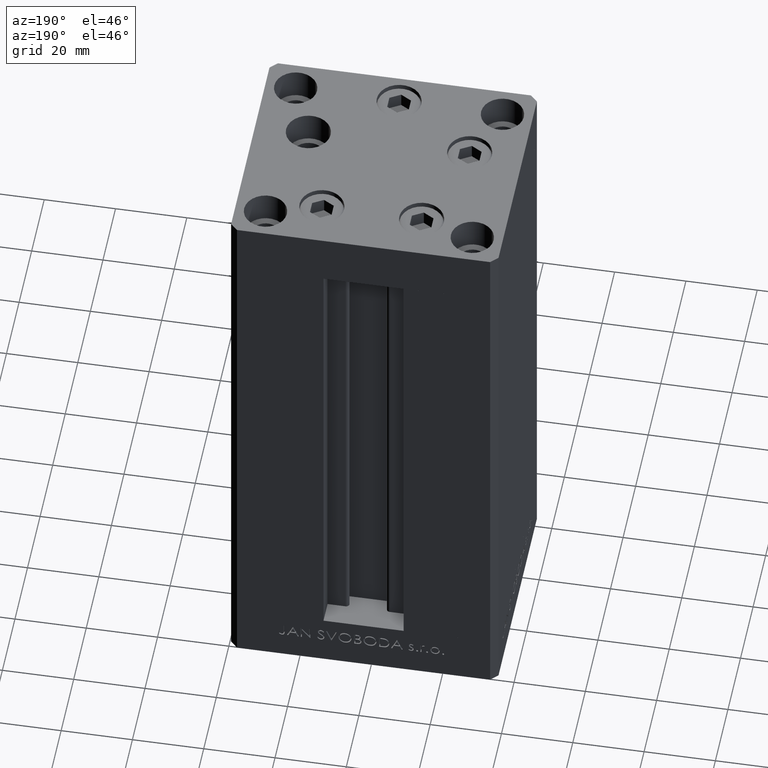
[diagram: clean part render]
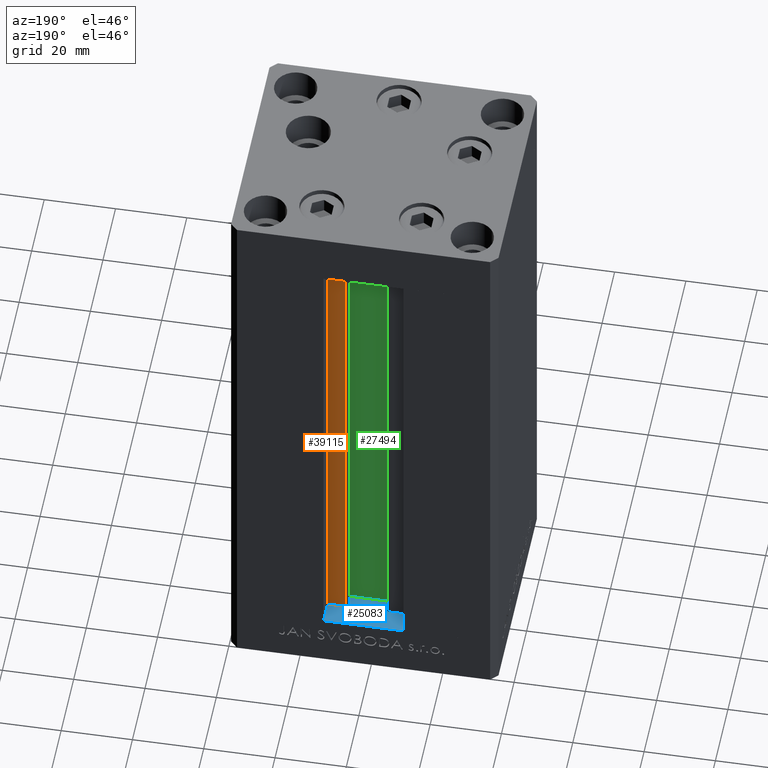
[diagram: same view with three faces highlighted in distinct colors, each labeled with its STEP entity id]
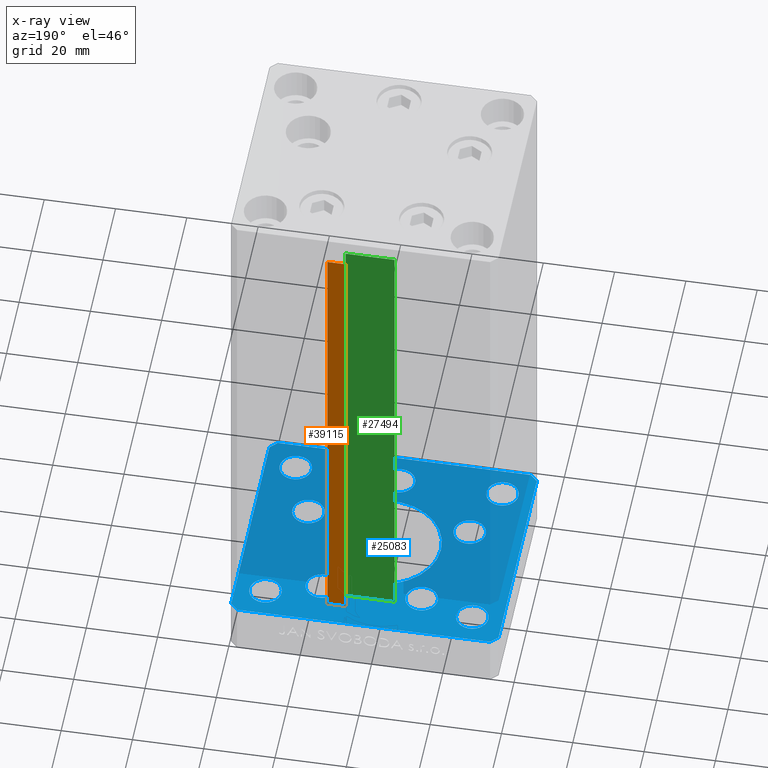
[diagram: x-ray of the same camera — body ghosted, the three highlighted faces saturated]
A machine part, auxiliary view with three faces highlighted in distinct colors.
The next image is the same camera in x-ray (body ghosted, the three faces saturated) — at least one of them is partly hidden behind the body in this view.
Their STEP definitions:

[orange] entity #39115 — the highlighted planar face has unit normal (0, -1, 0).
#2409 = ORIENTED_EDGE ( 'NONE', *, *, #45982, .F. ) ;
#5831 = LINE ( 'NONE', #32991, #24863 ) ;
#5858 = AXIS2_PLACEMENT_3D ( 'NONE', #28568, #44152, #6806 ) ;
#6089 = ORIENTED_EDGE ( 'NONE', *, *, #23525, .F. ) ;
#6806 = DIRECTION ( 'NONE',  ( 0.000000000000000000, -0.000000000000000000, -1.000000000000000000 ) ) ;
#8836 = VERTEX_POINT ( 'NONE', #30884 ) ;
#10307 = ORIENTED_EDGE ( 'NONE', *, *, #19269, .F. ) ;
#11815 = VERTEX_POINT ( 'NONE', #42192 ) ;
#12416 = VECTOR ( 'NONE', #24670, 1000.000000000000000 ) ;
#19269 = EDGE_CURVE ( 'NONE', #45633, #11815, #21446, .T. ) ;
#19295 = EDGE_LOOP ( 'NONE', ( #10307, #2409, #36750, #6089 ) ) ;
#21446 = LINE ( 'NONE', #43731, #12416 ) ;
#21869 = PLANE ( 'NONE',  #5858 ) ;
#22796 = DIRECTION ( 'NONE',  ( -0.000000000000000000, -0.000000000000000000, 1.000000000000000000 ) ) ;
#22922 = VECTOR ( 'NONE', #22796, 1000.000000000000000 ) ;
#23525 = EDGE_CURVE ( 'NONE', #11815, #40148, #39003, .T. ) ;
#24670 = DIRECTION ( 'NONE',  ( -0.000000000000000000, -0.000000000000000000, 1.000000000000000000 ) ) ;
#24863 = VECTOR ( 'NONE', #25569, 1000.000000000000000 ) ;
#25569 = DIRECTION ( 'NONE',  ( 1.000000000000000000, 0.000000000000000000, 0.000000000000000000 ) ) ;
#26986 = CARTESIAN_POINT ( 'NONE',  ( 6.183333333334001480, 25.99999999999999289, 0.000000000000000000 ) ) ;
#28568 = CARTESIAN_POINT ( 'NONE',  ( 6.183333333334001480, 25.99999999999999289, 0.000000000000000000 ) ) ;
#28607 = CARTESIAN_POINT ( 'NONE',  ( 0.000000000000000000, 25.99999999999999289, 136.0000000000000000 ) ) ;
#29295 = FACE_OUTER_BOUND ( 'NONE', #19295, .T. ) ;
#29823 = CARTESIAN_POINT ( 'NONE',  ( 11.25000000000000178, 25.99999999999999289, 0.000000000000000000 ) ) ;
#30381 = EDGE_CURVE ( 'NONE', #8836, #40148, #30699, .T. ) ;
#30699 = LINE ( 'NONE', #26986, #22922 ) ;
#30884 = CARTESIAN_POINT ( 'NONE',  ( 6.183333333334001480, 25.99999999999999289, 0.000000000000000000 ) ) ;
#31501 = VECTOR ( 'NONE', #43713, 1000.000000000000000 ) ;
#32991 = CARTESIAN_POINT ( 'NONE',  ( 6.183333333334001480, 25.99999999999999289, 0.000000000000000000 ) ) ;
#36750 = ORIENTED_EDGE ( 'NONE', *, *, #30381, .T. ) ;
#39003 = LINE ( 'NONE', #28607, #31501 ) ;
#39115 = ADVANCED_FACE ( 'NONE', ( #29295 ), #21869, .F. ) ;
#40148 = VERTEX_POINT ( 'NONE', #45435 ) ;
#42192 = CARTESIAN_POINT ( 'NONE',  ( 11.25000000000000178, 25.99999999999999289, 136.0000000000000000 ) ) ;
#43713 = DIRECTION ( 'NONE',  ( -1.000000000000000000, 0.000000000000000000, 0.000000000000000000 ) ) ;
#43731 = CARTESIAN_POINT ( 'NONE',  ( 11.25000000000000178, 25.99999999999999289, 0.000000000000000000 ) ) ;
#44152 = DIRECTION ( 'NONE',  ( 0.000000000000000000, -1.000000000000000000, 0.000000000000000000 ) ) ;
#45435 = CARTESIAN_POINT ( 'NONE',  ( 6.183333333334001480, 25.99999999999999289, 136.0000000000000000 ) ) ;
#45633 = VERTEX_POINT ( 'NONE', #29823 ) ;
#45982 = EDGE_CURVE ( 'NONE', #8836, #45633, #5831, .T. ) ;

[blue] entity #25083 — the highlighted planar face has unit normal (0, 0, -1).
#21 = VECTOR ( 'NONE', #13799, 1000.000000000000000 ) ;
#86 = CARTESIAN_POINT ( 'NONE',  ( 9.491068579633235913, 19.50000000000000000, -15.00000000000000000 ) ) ;
#386 = EDGE_CURVE ( 'NONE', #30295, #1252, #33625, .T. ) ;
#464 = DIRECTION ( 'NONE',  ( -0.000000000000000000, 0.000000000000000000, 1.000000000000000000 ) ) ;
#734 = AXIS2_PLACEMENT_3D ( 'NONE', #8270, #16170, #42636 ) ;
#752 = CARTESIAN_POINT ( 'NONE',  ( 29.00000000000000000, 24.00000000000000355, -15.00000000000000000 ) ) ;
#839 = AXIS2_PLACEMENT_3D ( 'NONE', #35401, #47052, #39116 ) ;
#906 = CIRCLE ( 'NONE', #25392, 4.499999999999997335 ) ;
#1068 = CARTESIAN_POINT ( 'NONE',  ( -29.00000000000000000, 24.00000000000000711, -15.00000000000000000 ) ) ;
#1184 = CARTESIAN_POINT ( 'NONE',  ( -22.62741699796953299, -8.000000000000000000, -15.00000000000000000 ) ) ;
#1186 = DIRECTION ( 'NONE',  ( 0.7071067811865463515, 0.7071067811865487940, 0.000000000000000000 ) ) ;
#1252 = VERTEX_POINT ( 'NONE', #2516 ) ;
#1266 = EDGE_CURVE ( 'NONE', #14731, #48813, #8439, .T. ) ;
#1424 = DIRECTION ( 'NONE',  ( -0.000000000000000000, 0.000000000000000000, 1.000000000000000000 ) ) ;
#2114 = EDGE_CURVE ( 'NONE', #10422, #32493, #3696, .T. ) ;
#2184 = LINE ( 'NONE', #44217, #21 ) ;
#2310 = EDGE_CURVE ( 'NONE', #33352, #43285, #42805, .T. ) ;
#2516 = CARTESIAN_POINT ( 'NONE',  ( 27.12741699796953654, -8.000000000000000000, -15.00000000000000000 ) ) ;
#3340 = ORIENTED_EDGE ( 'NONE', *, *, #2114, .T. ) ;
#3378 = DIRECTION ( 'NONE',  ( 1.000000000000000000, 0.000000000000000000, 0.000000000000000000 ) ) ;
#3696 = CIRCLE ( 'NONE', #10028, 4.499999999999999112 ) ;
#3820 = ORIENTED_EDGE ( 'NONE', *, *, #42101, .F. ) ;
#4094 = ORIENTED_EDGE ( 'NONE', *, *, #26476, .F. ) ;
#4204 = DIRECTION ( 'NONE',  ( -0.000000000000000000, 0.000000000000000000, 1.000000000000000000 ) ) ;
#4306 = ORIENTED_EDGE ( 'NONE', *, *, #41840, .T. ) ;
#4413 = EDGE_CURVE ( 'NONE', #13727, #22456, #26198, .T. ) ;
#4447 = CARTESIAN_POINT ( 'NONE',  ( 13.99106857963324124, 19.50000000000000000, -15.00000000000000000 ) ) ;
#4701 = EDGE_CURVE ( 'NONE', #25448, #17541, #43295, .T. ) ;
#5003 = CARTESIAN_POINT ( 'NONE',  ( -37.50000000000001421, 30.50000000000000000, -15.00000000000000000 ) ) ;
#5023 = DIRECTION ( 'NONE',  ( -0.000000000000000000, 0.000000000000000000, 1.000000000000000000 ) ) ;
#5073 = VERTEX_POINT ( 'NONE', #42645 ) ;
#5875 = VERTEX_POINT ( 'NONE', #10522 ) ;
#5881 = CARTESIAN_POINT ( 'NONE',  ( 24.50000000000000000, 24.00000000000000355, -15.00000000000000000 ) ) ;
#5882 = CARTESIAN_POINT ( 'NONE',  ( 22.62741699796953299, -8.000000000000000000, -15.00000000000000000 ) ) ;
#5999 = DIRECTION ( 'NONE',  ( -0.000000000000000000, 0.000000000000000000, 1.000000000000000000 ) ) ;
#6485 = CARTESIAN_POINT ( 'NONE',  ( 37.50000000000000711, -30.49999999999992895, -15.00000000000000000 ) ) ;
#6876 = CARTESIAN_POINT ( 'NONE',  ( 0.000000000000000000, -24.00000000000001066, -15.00000000000000000 ) ) ;
#7426 = CARTESIAN_POINT ( 'NONE',  ( 35.50000000000000000, 32.49999999999999289, -15.00000000000000000 ) ) ;
#7626 = EDGE_LOOP ( 'NONE', ( #42737, #7784 ) ) ;
#7721 = DIRECTION ( 'NONE',  ( 0.000000000000000000, -0.000000000000000000, -1.000000000000000000 ) ) ;
#7784 = ORIENTED_EDGE ( 'NONE', *, *, #28874, .F. ) ;
#7997 = CARTESIAN_POINT ( 'NONE',  ( 33.50000000000000000, 24.00000000000000355, -15.00000000000000000 ) ) ;
#8045 = VERTEX_POINT ( 'NONE', #40010 ) ;
#8046 = ORIENTED_EDGE ( 'NONE', *, *, #16104, .F. ) ;
#8107 = VECTOR ( 'NONE', #38368, 1000.000000000000000 ) ;
#8229 = ORIENTED_EDGE ( 'NONE', *, *, #20594, .F. ) ;
#8270 = CARTESIAN_POINT ( 'NONE',  ( 0.000000000000000000, 0.000000000000000000, -15.00000000000000000 ) ) ;
#8351 = EDGE_LOOP ( 'NONE', ( #8422, #41497 ) ) ;
#8422 = ORIENTED_EDGE ( 'NONE', *, *, #35105, .T. ) ;
#8439 = CIRCLE ( 'NONE', #21076, 4.500000000000005329 ) ;
#8538 = AXIS2_PLACEMENT_3D ( 'NONE', #6876, #29367, #21940 ) ;
#8663 = VERTEX_POINT ( 'NONE', #33128 ) ;
#8965 = VERTEX_POINT ( 'NONE', #39346 ) ;
#9423 = DIRECTION ( 'NONE',  ( 1.000000000000000000, 0.000000000000000000, 0.000000000000000000 ) ) ;
#9626 = FACE_BOUND ( 'NONE', #31076, .T. ) ;
#9676 = DIRECTION ( 'NONE',  ( 0.7071067811865512365, -0.7071067811865439090, 0.000000000000000000 ) ) ;
#9911 = EDGE_CURVE ( 'NONE', #37940, #18798, #40304, .T. ) ;
#10028 = AXIS2_PLACEMENT_3D ( 'NONE', #39865, #5999, #44315 ) ;
#10153 = CARTESIAN_POINT ( 'NONE',  ( -37.50000000000000000, -30.50000000000004263, -15.00000000000000000 ) ) ;
#10185 = ORIENTED_EDGE ( 'NONE', *, *, #9911, .T. ) ;
#10254 = VECTOR ( 'NONE', #18770, 1000.000000000000000 ) ;
#10422 = VERTEX_POINT ( 'NONE', #24394 ) ;
#10522 = CARTESIAN_POINT ( 'NONE',  ( -24.50000000000000000, 24.00000000000000711, -15.00000000000000000 ) ) ;
#10580 = CARTESIAN_POINT ( 'NONE',  ( 35.50000000000000000, 32.49999999999999289, -15.00000000000000000 ) ) ;
#11521 = CARTESIAN_POINT ( 'NONE',  ( -18.12741699796953654, -8.000000000000000000, -15.00000000000000000 ) ) ;
#11664 = CARTESIAN_POINT ( 'NONE',  ( -13.99106857963324124, 19.50000000000000000, -15.00000000000000000 ) ) ;
#11722 = EDGE_CURVE ( 'NONE', #17541, #25448, #48273, .T. ) ;
#11843 = LINE ( 'NONE', #7426, #10254 ) ;
#12318 = AXIS2_PLACEMENT_3D ( 'NONE', #36404, #25982, #28739 ) ;
#12600 = FACE_BOUND ( 'NONE', #28593, .T. ) ;
#12707 = AXIS2_PLACEMENT_3D ( 'NONE', #21755, #33117, #9423 ) ;
#13040 = LINE ( 'NONE', #16751, #30873 ) ;
#13255 = ORIENTED_EDGE ( 'NONE', *, *, #1266, .T. ) ;
#13329 = FACE_BOUND ( 'NONE', #7626, .T. ) ;
#13386 = CARTESIAN_POINT ( 'NONE',  ( 18.49106857963324657, 19.50000000000000000, -15.00000000000000000 ) ) ;
#13713 = EDGE_CURVE ( 'NONE', #48813, #14731, #26833, .T. ) ;
#13727 = VERTEX_POINT ( 'NONE', #40192 ) ;
#13799 = DIRECTION ( 'NONE',  ( 0.000000000000000000, 1.000000000000000000, 0.000000000000000000 ) ) ;
#14643 = DIRECTION ( 'NONE',  ( 1.000000000000000000, 0.000000000000000000, 0.000000000000000000 ) ) ;
#14648 = EDGE_CURVE ( 'NONE', #28846, #28166, #33970, .T. ) ;
#14731 = VERTEX_POINT ( 'NONE', #13386 ) ;
#14811 = AXIS2_PLACEMENT_3D ( 'NONE', #32211, #28015, #36657 ) ;
#15335 = DIRECTION ( 'NONE',  ( 0.000000000000000000, -0.000000000000000000, -1.000000000000000000 ) ) ;
#15671 = FACE_BOUND ( 'NONE', #29636, .T. ) ;
#15699 = CARTESIAN_POINT ( 'NONE',  ( 4.500000000000001776, -24.00000000000001066, -15.00000000000000000 ) ) ;
#16104 = EDGE_CURVE ( 'NONE', #43285, #38134, #13040, .T. ) ;
#16170 = DIRECTION ( 'NONE',  ( -0.000000000000000000, 0.000000000000000000, 1.000000000000000000 ) ) ;
#16410 = AXIS2_PLACEMENT_3D ( 'NONE', #38399, #31235, #38647 ) ;
#16749 = DIRECTION ( 'NONE',  ( 1.000000000000000000, 0.000000000000000000, 0.000000000000000000 ) ) ;
#16751 = CARTESIAN_POINT ( 'NONE',  ( 35.50000000000001421, -32.49999999999992184, -15.00000000000000000 ) ) ;
#16793 = CIRCLE ( 'NONE', #22288, 4.500000000000000888 ) ;
#17396 = EDGE_LOOP ( 'NONE', ( #42478, #43282, #3820, #29059, #41933, #24774, #8046, #32754 ) ) ;
#17478 = DIRECTION ( 'NONE',  ( -0.000000000000000000, 0.000000000000000000, 1.000000000000000000 ) ) ;
#17541 = VERTEX_POINT ( 'NONE', #15699 ) ;
#17579 = CARTESIAN_POINT ( 'NONE',  ( 29.00000000000000000, 24.00000000000000355, -15.00000000000000000 ) ) ;
#17636 = CARTESIAN_POINT ( 'NONE',  ( -35.50000000000001421, -32.50000000000000711, -15.00000000000000000 ) ) ;
#17911 = CARTESIAN_POINT ( 'NONE',  ( -35.50000000000000711, 32.49999999999997868, -15.00000000000000000 ) ) ;
#18311 = CARTESIAN_POINT ( 'NONE',  ( -29.00000000000000000, -23.99999999999999645, -15.00000000000000000 ) ) ;
#18596 = EDGE_LOOP ( 'NONE', ( #32666, #40925 ) ) ;
#18770 = DIRECTION ( 'NONE',  ( -1.000000000000000000, -1.954618001100627573E-16, 0.000000000000000000 ) ) ;
#18774 = CARTESIAN_POINT ( 'NONE',  ( 37.50000000000000711, 30.50000000000001421, -15.00000000000000000 ) ) ;
#18798 = VERTEX_POINT ( 'NONE', #22589 ) ;
#19107 = CARTESIAN_POINT ( 'NONE',  ( 24.50000000000000711, -23.99999999999999645, -15.00000000000000000 ) ) ;
#19275 = DIRECTION ( 'NONE',  ( 1.000000000000000000, 0.000000000000000000, 0.000000000000000000 ) ) ;
#19483 = CARTESIAN_POINT ( 'NONE',  ( 29.00000000000000355, -23.99999999999999645, -15.00000000000000000 ) ) ;
#19524 = DIRECTION ( 'NONE',  ( 1.000000000000000000, 0.000000000000000000, 0.000000000000000000 ) ) ;
#19829 = EDGE_CURVE ( 'NONE', #5875, #8045, #44061, .T. ) ;
#19979 = EDGE_CURVE ( 'NONE', #35410, #37475, #40856, .T. ) ;
#20594 = EDGE_CURVE ( 'NONE', #22592, #33433, #32182, .T. ) ;
#21076 = AXIS2_PLACEMENT_3D ( 'NONE', #4447, #4204, #19524 ) ;
#21231 = FACE_BOUND ( 'NONE', #29083, .T. ) ;
#21690 = CIRCLE ( 'NONE', #37497, 4.499999999999997335 ) ;
#21755 = CARTESIAN_POINT ( 'NONE',  ( 0.000000000000000000, 0.000000000000000000, -15.00000000000000000 ) ) ;
#21940 = DIRECTION ( 'NONE',  ( 1.000000000000000000, 0.000000000000000000, 0.000000000000000000 ) ) ;
#22256 = CIRCLE ( 'NONE', #43600, 4.500000000000000888 ) ;
#22288 = AXIS2_PLACEMENT_3D ( 'NONE', #18311, #48509, #26209 ) ;
#22412 = CARTESIAN_POINT ( 'NONE',  ( 0.000000000000000000, -24.00000000000001066, -15.00000000000000000 ) ) ;
#22456 = VERTEX_POINT ( 'NONE', #10580 ) ;
#22589 = CARTESIAN_POINT ( 'NONE',  ( 33.50000000000000000, -23.99999999999999645, -15.00000000000000000 ) ) ;
#22592 = VERTEX_POINT ( 'NONE', #34785 ) ;
#22621 = ORIENTED_EDGE ( 'NONE', *, *, #35865, .T. ) ;
#23040 = CARTESIAN_POINT ( 'NONE',  ( -4.500000000000001776, -24.00000000000001066, -15.00000000000000000 ) ) ;
#23460 = VECTOR ( 'NONE', #24965, 1000.000000000000000 ) ;
#23829 = FACE_BOUND ( 'NONE', #18596, .T. ) ;
#23976 = DIRECTION ( 'NONE',  ( 1.000000000000000000, 0.000000000000000000, 0.000000000000000000 ) ) ;
#24394 = CARTESIAN_POINT ( 'NONE',  ( -18.49106857963323947, 19.50000000000000000, -15.00000000000000000 ) ) ;
#24591 = EDGE_LOOP ( 'NONE', ( #43050, #4094 ) ) ;
#24774 = ORIENTED_EDGE ( 'NONE', *, *, #31173, .F. ) ;
#24965 = DIRECTION ( 'NONE',  ( 1.000000000000000000, 1.172770800660376149E-15, 0.000000000000000000 ) ) ;
#25083 = ADVANCED_FACE ( 'NONE', ( #13329, #28401, #9626, #42781, #21231, #36318, #46487, #12600, #27667, #23829, #15671 ), #30756, .F. ) ;
#25392 = AXIS2_PLACEMENT_3D ( 'NONE', #1184, #1424, #16749 ) ;
#25448 = VERTEX_POINT ( 'NONE', #23040 ) ;
#25982 = DIRECTION ( 'NONE',  ( -0.000000000000000000, 0.000000000000000000, 1.000000000000000000 ) ) ;
#26021 = CIRCLE ( 'NONE', #29211, 4.500000000000000888 ) ;
#26190 = CARTESIAN_POINT ( 'NONE',  ( -16.00000000000000000, 1.959434878635765131E-15, -15.00000000000000000 ) ) ;
#26198 = LINE ( 'NONE', #18774, #44063 ) ;
#26209 = DIRECTION ( 'NONE',  ( 1.000000000000000000, 0.000000000000000000, 0.000000000000000000 ) ) ;
#26476 = EDGE_CURVE ( 'NONE', #37475, #35410, #26021, .T. ) ;
#26528 = DIRECTION ( 'NONE',  ( -0.7071067811865524577, -0.7071067811865426878, 0.000000000000000000 ) ) ;
#26605 = DIRECTION ( 'NONE',  ( -0.000000000000000000, 0.000000000000000000, 1.000000000000000000 ) ) ;
#26682 = CARTESIAN_POINT ( 'NONE',  ( -37.50000000000000000, -30.50000000000004263, -15.00000000000000000 ) ) ;
#26743 = DIRECTION ( 'NONE',  ( -0.000000000000000000, 0.000000000000000000, 1.000000000000000000 ) ) ;
#26833 = CIRCLE ( 'NONE', #37116, 4.500000000000005329 ) ;
#26909 = AXIS2_PLACEMENT_3D ( 'NONE', #22412, #37493, #3378 ) ;
#27341 = CARTESIAN_POINT ( 'NONE',  ( 13.99106857963324124, 19.50000000000000000, -15.00000000000000000 ) ) ;
#27482 = LINE ( 'NONE', #5003, #8107 ) ;
#27667 = FACE_OUTER_BOUND ( 'NONE', #17396, .T. ) ;
#28015 = DIRECTION ( 'NONE',  ( 0.000000000000000000, -0.000000000000000000, -1.000000000000000000 ) ) ;
#28166 = VERTEX_POINT ( 'NONE', #11521 ) ;
#28401 = FACE_BOUND ( 'NONE', #46018, .T. ) ;
#28593 = EDGE_LOOP ( 'NONE', ( #31080, #8229 ) ) ;
#28739 = DIRECTION ( 'NONE',  ( 1.000000000000000000, 0.000000000000000000, 0.000000000000000000 ) ) ;
#28846 = VERTEX_POINT ( 'NONE', #43306 ) ;
#28874 = EDGE_CURVE ( 'NONE', #39786, #8663, #34004, .T. ) ;
#29059 = ORIENTED_EDGE ( 'NONE', *, *, #29926, .F. ) ;
#29083 = EDGE_LOOP ( 'NONE', ( #13255, #40507 ) ) ;
#29211 = AXIS2_PLACEMENT_3D ( 'NONE', #17579, #35462, #32661 ) ;
#29367 = DIRECTION ( 'NONE',  ( -0.000000000000000000, 0.000000000000000000, 1.000000000000000000 ) ) ;
#29636 = EDGE_LOOP ( 'NONE', ( #4306, #10185 ) ) ;
#29804 = AXIS2_PLACEMENT_3D ( 'NONE', #752, #15335, #23976 ) ;
#29811 = EDGE_CURVE ( 'NONE', #32967, #33352, #44286, .T. ) ;
#29926 = EDGE_CURVE ( 'NONE', #22456, #5073, #11843, .T. ) ;
#30161 = CARTESIAN_POINT ( 'NONE',  ( 29.00000000000000355, -23.99999999999999645, -15.00000000000000000 ) ) ;
#30295 = VERTEX_POINT ( 'NONE', #48318 ) ;
#30327 = AXIS2_PLACEMENT_3D ( 'NONE', #45314, #7721, #14643 ) ;
#30403 = VECTOR ( 'NONE', #26528, 1000.000000000000000 ) ;
#30408 = DIRECTION ( 'NONE',  ( -0.000000000000000000, 0.000000000000000000, 1.000000000000000000 ) ) ;
#30428 = ORIENTED_EDGE ( 'NONE', *, *, #4701, .T. ) ;
#30756 = PLANE ( 'NONE',  #734 ) ;
#30873 = VECTOR ( 'NONE', #1186, 1000.000000000000000 ) ;
#31076 = EDGE_LOOP ( 'NONE', ( #48945, #30428 ) ) ;
#31080 = ORIENTED_EDGE ( 'NONE', *, *, #36137, .F. ) ;
#31173 = EDGE_CURVE ( 'NONE', #38134, #13727, #2184, .T. ) ;
#31235 = DIRECTION ( 'NONE',  ( -0.000000000000000000, 0.000000000000000000, 1.000000000000000000 ) ) ;
#31781 = CIRCLE ( 'NONE', #44437, 4.499999999999999112 ) ;
#31833 = DIRECTION ( 'NONE',  ( 1.000000000000000000, 0.000000000000000000, 0.000000000000000000 ) ) ;
#31959 = DIRECTION ( 'NONE',  ( 1.000000000000000000, 0.000000000000000000, 0.000000000000000000 ) ) ;
#32182 = CIRCLE ( 'NONE', #14811, 4.500000000000000888 ) ;
#32211 = CARTESIAN_POINT ( 'NONE',  ( -29.00000000000000000, -23.99999999999999645, -15.00000000000000000 ) ) ;
#32384 = CARTESIAN_POINT ( 'NONE',  ( -35.50000000000001421, -32.50000000000000711, -15.00000000000000000 ) ) ;
#32493 = VERTEX_POINT ( 'NONE', #46356 ) ;
#32661 = DIRECTION ( 'NONE',  ( 1.000000000000000000, 0.000000000000000000, 0.000000000000000000 ) ) ;
#32666 = ORIENTED_EDGE ( 'NONE', *, *, #19829, .T. ) ;
#32754 = ORIENTED_EDGE ( 'NONE', *, *, #2310, .F. ) ;
#32967 = VERTEX_POINT ( 'NONE', #26682 ) ;
#33117 = DIRECTION ( 'NONE',  ( 0.000000000000000000, -0.000000000000000000, -1.000000000000000000 ) ) ;
#33128 = CARTESIAN_POINT ( 'NONE',  ( 16.00000000000000000, 0.000000000000000000, -15.00000000000000000 ) ) ;
#33352 = VERTEX_POINT ( 'NONE', #17636 ) ;
#33433 = VERTEX_POINT ( 'NONE', #33925 ) ;
#33625 = CIRCLE ( 'NONE', #12318, 4.500000000000000888 ) ;
#33925 = CARTESIAN_POINT ( 'NONE',  ( -24.50000000000000000, -23.99999999999999645, -15.00000000000000000 ) ) ;
#33970 = CIRCLE ( 'NONE', #839, 4.499999999999997335 ) ;
#34004 = CIRCLE ( 'NONE', #12707, 16.00000000000000000 ) ;
#34224 = EDGE_CURVE ( 'NONE', #28166, #28846, #906, .T. ) ;
#34314 = EDGE_LOOP ( 'NONE', ( #22621, #3340 ) ) ;
#34565 = DIRECTION ( 'NONE',  ( 1.000000000000000000, 0.000000000000000000, 0.000000000000000000 ) ) ;
#34785 = CARTESIAN_POINT ( 'NONE',  ( -33.50000000000000000, -23.99999999999999645, -15.00000000000000000 ) ) ;
#35105 = EDGE_CURVE ( 'NONE', #1252, #30295, #22256, .T. ) ;
#35401 = CARTESIAN_POINT ( 'NONE',  ( -22.62741699796953299, -8.000000000000000000, -15.00000000000000000 ) ) ;
#35410 = VERTEX_POINT ( 'NONE', #7997 ) ;
#35462 = DIRECTION ( 'NONE',  ( 0.000000000000000000, -0.000000000000000000, -1.000000000000000000 ) ) ;
#35515 = EDGE_CURVE ( 'NONE', #8045, #5875, #39631, .T. ) ;
#35865 = EDGE_CURVE ( 'NONE', #32493, #10422, #31781, .T. ) ;
#35888 = EDGE_CURVE ( 'NONE', #8965, #32967, #27482, .T. ) ;
#36137 = EDGE_CURVE ( 'NONE', #33433, #22592, #16793, .T. ) ;
#36318 = FACE_BOUND ( 'NONE', #34314, .T. ) ;
#36404 = CARTESIAN_POINT ( 'NONE',  ( 22.62741699796953299, -8.000000000000000000, -15.00000000000000000 ) ) ;
#36657 = DIRECTION ( 'NONE',  ( 1.000000000000000000, 0.000000000000000000, 0.000000000000000000 ) ) ;
#36709 = LINE ( 'NONE', #17911, #30403 ) ;
#37116 = AXIS2_PLACEMENT_3D ( 'NONE', #27341, #26605, #41708 ) ;
#37475 = VERTEX_POINT ( 'NONE', #5881 ) ;
#37493 = DIRECTION ( 'NONE',  ( -0.000000000000000000, 0.000000000000000000, 1.000000000000000000 ) ) ;
#37497 = AXIS2_PLACEMENT_3D ( 'NONE', #19483, #464, #34565 ) ;
#37940 = VERTEX_POINT ( 'NONE', #19107 ) ;
#38134 = VERTEX_POINT ( 'NONE', #6485 ) ;
#38368 = DIRECTION ( 'NONE',  ( 2.275047181608926165E-16, -1.000000000000000000, 0.000000000000000000 ) ) ;
#38399 = CARTESIAN_POINT ( 'NONE',  ( -29.00000000000000000, 24.00000000000000711, -15.00000000000000000 ) ) ;
#38647 = DIRECTION ( 'NONE',  ( 1.000000000000000000, 0.000000000000000000, 0.000000000000000000 ) ) ;
#39116 = DIRECTION ( 'NONE',  ( 1.000000000000000000, 0.000000000000000000, 0.000000000000000000 ) ) ;
#39346 = CARTESIAN_POINT ( 'NONE',  ( -37.50000000000001421, 30.50000000000000000, -15.00000000000000000 ) ) ;
#39631 = CIRCLE ( 'NONE', #45964, 4.500000000000000888 ) ;
#39786 = VERTEX_POINT ( 'NONE', #26190 ) ;
#39865 = CARTESIAN_POINT ( 'NONE',  ( -13.99106857963324124, 19.50000000000000000, -15.00000000000000000 ) ) ;
#40010 = CARTESIAN_POINT ( 'NONE',  ( -33.50000000000000000, 24.00000000000000711, -15.00000000000000000 ) ) ;
#40192 = CARTESIAN_POINT ( 'NONE',  ( 37.50000000000000711, 30.50000000000001421, -15.00000000000000000 ) ) ;
#40304 = CIRCLE ( 'NONE', #48205, 4.499999999999997335 ) ;
#40496 = EDGE_CURVE ( 'NONE', #8663, #39786, #42205, .T. ) ;
#40507 = ORIENTED_EDGE ( 'NONE', *, *, #13713, .T. ) ;
#40856 = CIRCLE ( 'NONE', #29804, 4.500000000000000888 ) ;
#40925 = ORIENTED_EDGE ( 'NONE', *, *, #35515, .T. ) ;
#41358 = DIRECTION ( 'NONE',  ( 1.000000000000000000, 0.000000000000000000, 0.000000000000000000 ) ) ;
#41497 = ORIENTED_EDGE ( 'NONE', *, *, #386, .T. ) ;
#41708 = DIRECTION ( 'NONE',  ( 1.000000000000000000, 0.000000000000000000, 0.000000000000000000 ) ) ;
#41840 = EDGE_CURVE ( 'NONE', #18798, #37940, #21690, .T. ) ;
#41933 = ORIENTED_EDGE ( 'NONE', *, *, #4413, .F. ) ;
#42101 = EDGE_CURVE ( 'NONE', #5073, #8965, #36709, .T. ) ;
#42205 = CIRCLE ( 'NONE', #30327, 16.00000000000000000 ) ;
#42478 = ORIENTED_EDGE ( 'NONE', *, *, #29811, .F. ) ;
#42633 = VECTOR ( 'NONE', #9676, 1000.000000000000000 ) ;
#42636 = DIRECTION ( 'NONE',  ( 1.000000000000000000, 0.000000000000000000, 0.000000000000000000 ) ) ;
#42645 = CARTESIAN_POINT ( 'NONE',  ( -35.50000000000000711, 32.49999999999997868, -15.00000000000000000 ) ) ;
#42737 = ORIENTED_EDGE ( 'NONE', *, *, #40496, .F. ) ;
#42781 = FACE_BOUND ( 'NONE', #8351, .T. ) ;
#42805 = LINE ( 'NONE', #32384, #23460 ) ;
#43050 = ORIENTED_EDGE ( 'NONE', *, *, #19979, .F. ) ;
#43177 = CARTESIAN_POINT ( 'NONE',  ( 35.50000000000001421, -32.49999999999992184, -15.00000000000000000 ) ) ;
#43282 = ORIENTED_EDGE ( 'NONE', *, *, #35888, .F. ) ;
#43285 = VERTEX_POINT ( 'NONE', #43177 ) ;
#43295 = CIRCLE ( 'NONE', #8538, 4.500000000000001776 ) ;
#43306 = CARTESIAN_POINT ( 'NONE',  ( -27.12741699796953299, -8.000000000000000000, -15.00000000000000000 ) ) ;
#43600 = AXIS2_PLACEMENT_3D ( 'NONE', #5882, #17478, #31833 ) ;
#44061 = CIRCLE ( 'NONE', #16410, 4.500000000000000888 ) ;
#44063 = VECTOR ( 'NONE', #48013, 1000.000000000000000 ) ;
#44217 = CARTESIAN_POINT ( 'NONE',  ( 37.50000000000000711, -30.49999999999992895, -15.00000000000000000 ) ) ;
#44286 = LINE ( 'NONE', #10153, #42633 ) ;
#44315 = DIRECTION ( 'NONE',  ( 1.000000000000000000, 0.000000000000000000, 0.000000000000000000 ) ) ;
#44437 = AXIS2_PLACEMENT_3D ( 'NONE', #11664, #26743, #41358 ) ;
#45314 = CARTESIAN_POINT ( 'NONE',  ( 0.000000000000000000, 0.000000000000000000, -15.00000000000000000 ) ) ;
#45964 = AXIS2_PLACEMENT_3D ( 'NONE', #1068, #5023, #31959 ) ;
#46018 = EDGE_LOOP ( 'NONE', ( #48622, #47173 ) ) ;
#46356 = CARTESIAN_POINT ( 'NONE',  ( -9.491068579633243019, 19.50000000000000000, -15.00000000000000000 ) ) ;
#46487 = FACE_BOUND ( 'NONE', #24591, .T. ) ;
#47052 = DIRECTION ( 'NONE',  ( -0.000000000000000000, 0.000000000000000000, 1.000000000000000000 ) ) ;
#47173 = ORIENTED_EDGE ( 'NONE', *, *, #14648, .T. ) ;
#48013 = DIRECTION ( 'NONE',  ( -0.7071067811865524577, 0.7071067811865426878, 0.000000000000000000 ) ) ;
#48205 = AXIS2_PLACEMENT_3D ( 'NONE', #30161, #30408, #19275 ) ;
#48273 = CIRCLE ( 'NONE', #26909, 4.500000000000001776 ) ;
#48318 = CARTESIAN_POINT ( 'NONE',  ( 18.12741699796953299, -8.000000000000000000, -15.00000000000000000 ) ) ;
#48509 = DIRECTION ( 'NONE',  ( 0.000000000000000000, -0.000000000000000000, -1.000000000000000000 ) ) ;
#48622 = ORIENTED_EDGE ( 'NONE', *, *, #34224, .T. ) ;
#48813 = VERTEX_POINT ( 'NONE', #86 ) ;
#48945 = ORIENTED_EDGE ( 'NONE', *, *, #11722, .T. ) ;

[green] entity #27494 — the highlighted planar face has unit normal (0, -1, 0).
#501 = VERTEX_POINT ( 'NONE', #30187 ) ;
#2139 = ORIENTED_EDGE ( 'NONE', *, *, #9293, .F. ) ;
#7507 = PLANE ( 'NONE',  #24522 ) ;
#8718 = VECTOR ( 'NONE', #40394, 1000.000000000000000 ) ;
#9139 = DIRECTION ( 'NONE',  ( 1.000000000000000000, -0.000000000000000000, -0.000000000000000000 ) ) ;
#9293 = EDGE_CURVE ( 'NONE', #32488, #16458, #16791, .T. ) ;
#11198 = LINE ( 'NONE', #22328, #12882 ) ;
#11927 = FACE_OUTER_BOUND ( 'NONE', #47718, .T. ) ;
#12882 = VECTOR ( 'NONE', #14904, 1000.000000000000000 ) ;
#13058 = LINE ( 'NONE', #39992, #16726 ) ;
#14904 = DIRECTION ( 'NONE',  ( -1.000000000000000000, 0.000000000000000000, 0.000000000000000000 ) ) ;
#15174 = ORIENTED_EDGE ( 'NONE', *, *, #18319, .F. ) ;
#16458 = VERTEX_POINT ( 'NONE', #23487 ) ;
#16593 = VECTOR ( 'NONE', #9139, 1000.000000000000000 ) ;
#16726 = VECTOR ( 'NONE', #39259, 1000.000000000000000 ) ;
#16791 = LINE ( 'NONE', #17758, #16593 ) ;
#17758 = CARTESIAN_POINT ( 'NONE',  ( 6.876153656360466826, 21.99999999999986855, 0.000000000000000000 ) ) ;
#18319 = EDGE_CURVE ( 'NONE', #16458, #30421, #13058, .T. ) ;
#20232 = ORIENTED_EDGE ( 'NONE', *, *, #37034, .F. ) ;
#20625 = CARTESIAN_POINT ( 'NONE',  ( -6.876153656360466826, 21.99999999999986855, 0.000000000000000000 ) ) ;
#22328 = CARTESIAN_POINT ( 'NONE',  ( 0.000000000000000000, 21.99999999999986855, 136.0000000000000000 ) ) ;
#23487 = CARTESIAN_POINT ( 'NONE',  ( 6.876153656360466826, 21.99999999999986855, 0.000000000000000000 ) ) ;
#24472 = ORIENTED_EDGE ( 'NONE', *, *, #27383, .T. ) ;
#24522 = AXIS2_PLACEMENT_3D ( 'NONE', #48811, #42105, #26027 ) ;
#25780 = CARTESIAN_POINT ( 'NONE',  ( -6.876153656360466826, 21.99999999999986855, 0.000000000000000000 ) ) ;
#26027 = DIRECTION ( 'NONE',  ( 0.000000000000000000, 0.000000000000000000, -1.000000000000000000 ) ) ;
#27383 = EDGE_CURVE ( 'NONE', #32488, #501, #29014, .T. ) ;
#27494 = ADVANCED_FACE ( 'NONE', ( #11927 ), #7507, .F. ) ;
#29014 = LINE ( 'NONE', #25780, #8718 ) ;
#30187 = CARTESIAN_POINT ( 'NONE',  ( -6.876153656360466826, 21.99999999999986855, 136.0000000000000000 ) ) ;
#30421 = VERTEX_POINT ( 'NONE', #38362 ) ;
#32488 = VERTEX_POINT ( 'NONE', #20625 ) ;
#37034 = EDGE_CURVE ( 'NONE', #30421, #501, #11198, .T. ) ;
#38362 = CARTESIAN_POINT ( 'NONE',  ( 6.876153656360466826, 21.99999999999986855, 136.0000000000000000 ) ) ;
#39259 = DIRECTION ( 'NONE',  ( -0.000000000000000000, -0.000000000000000000, 1.000000000000000000 ) ) ;
#39992 = CARTESIAN_POINT ( 'NONE',  ( 6.876153656360466826, 21.99999999999986855, 0.000000000000000000 ) ) ;
#40394 = DIRECTION ( 'NONE',  ( -0.000000000000000000, -0.000000000000000000, 1.000000000000000000 ) ) ;
#42105 = DIRECTION ( 'NONE',  ( 0.000000000000000000, -1.000000000000000000, -0.000000000000000000 ) ) ;
#47718 = EDGE_LOOP ( 'NONE', ( #15174, #2139, #24472, #20232 ) ) ;
#48811 = CARTESIAN_POINT ( 'NONE',  ( 6.876153656360466826, 21.99999999999986855, 0.000000000000000000 ) ) ;